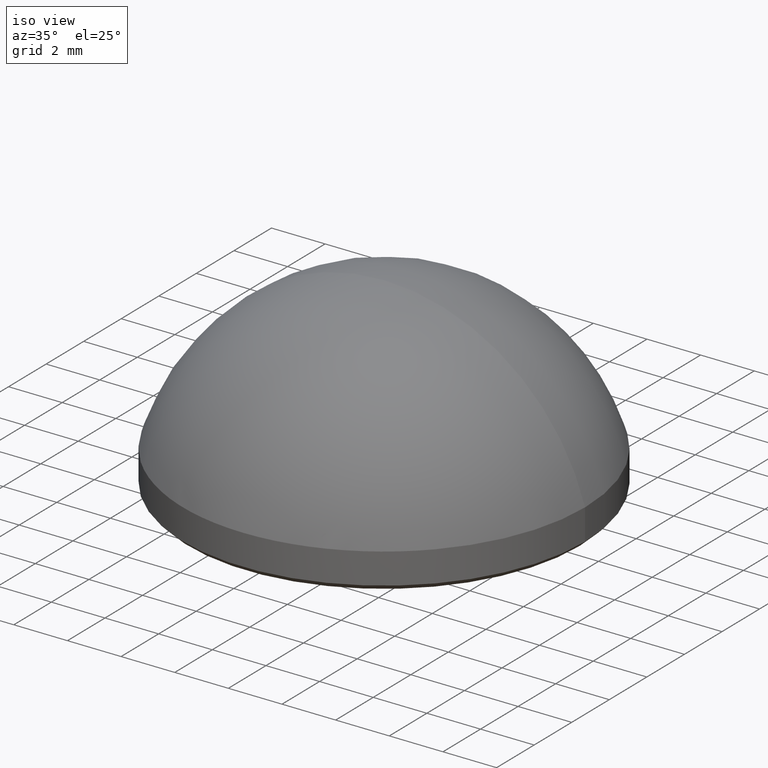
[diagram: clean part render]
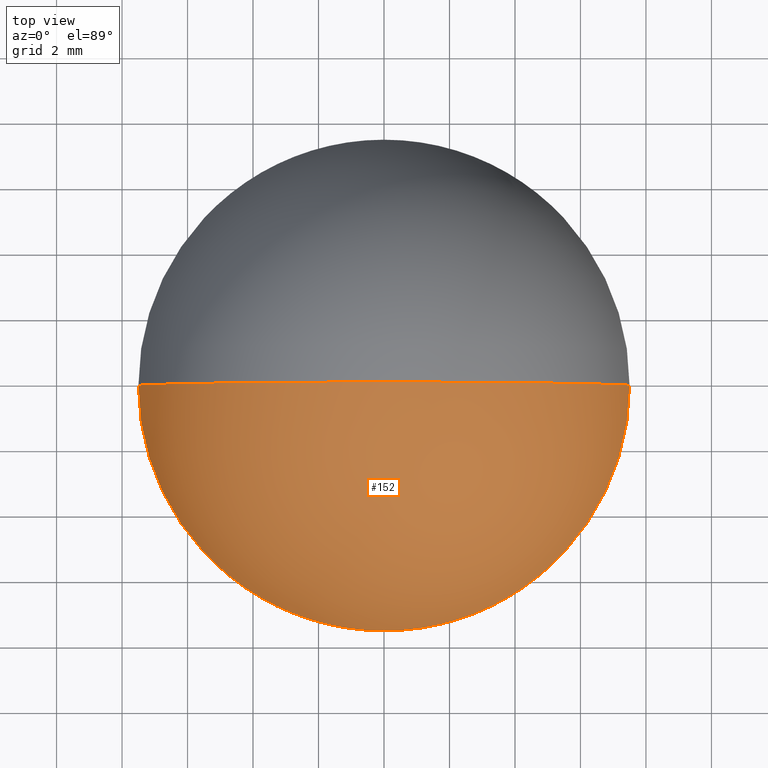
[diagram: tour spotlight — one face highlighted and labeled with its STEP entity id]
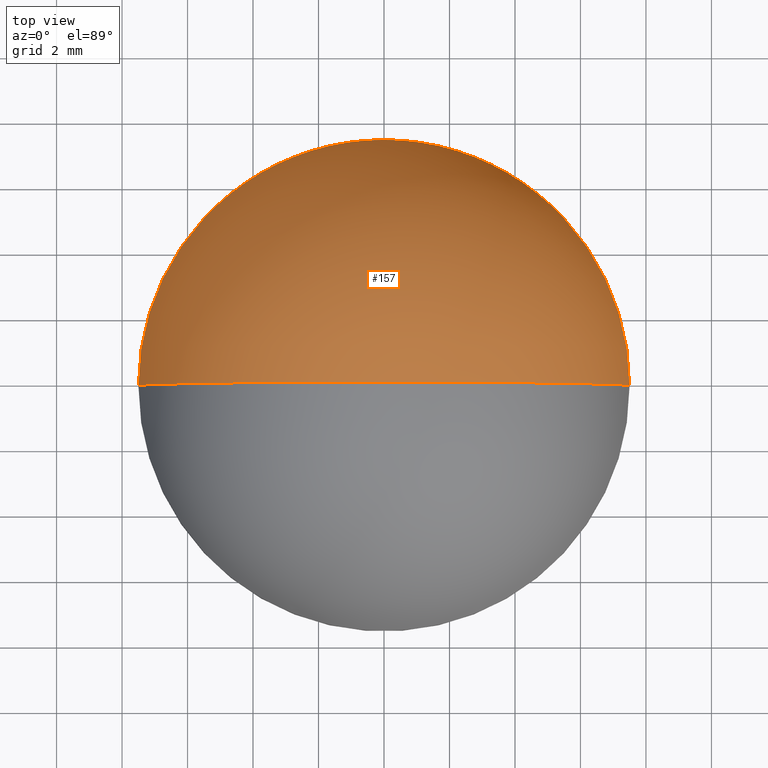
[diagram: tour spotlight — one face highlighted and labeled with its STEP entity id]
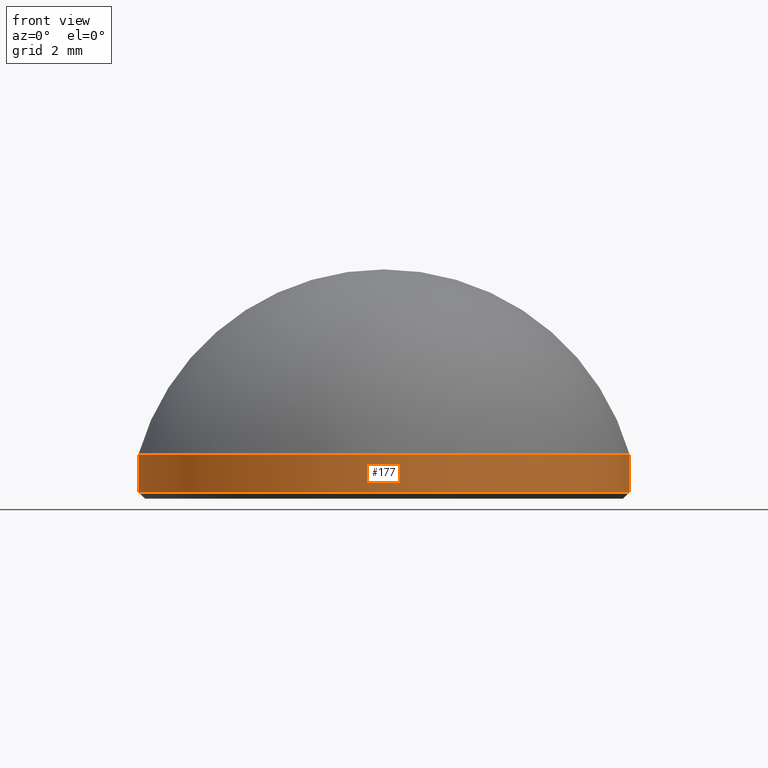
[diagram: tour spotlight — one face highlighted and labeled with its STEP entity id]
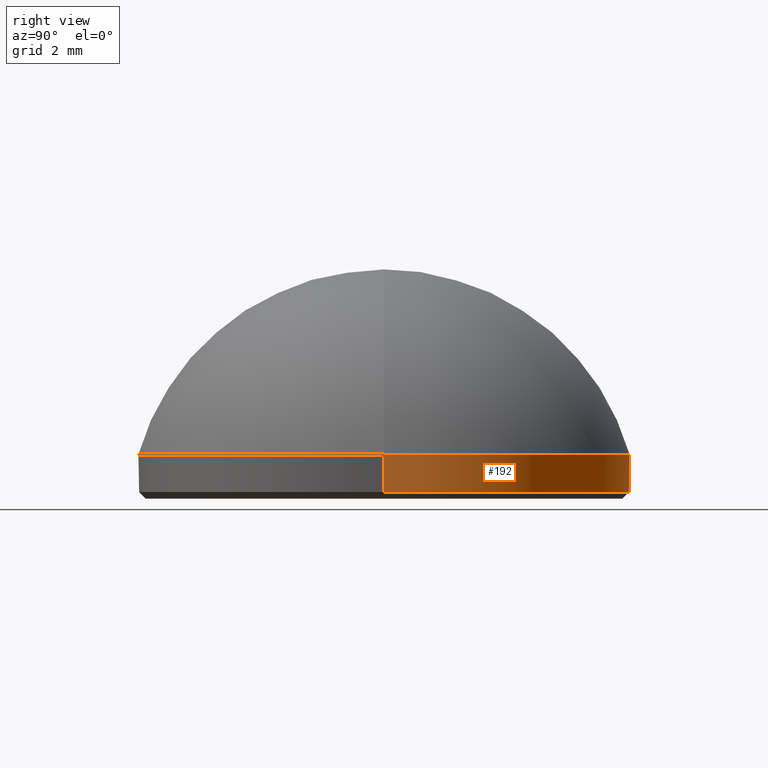
[diagram: tour spotlight — one face highlighted and labeled with its STEP entity id]
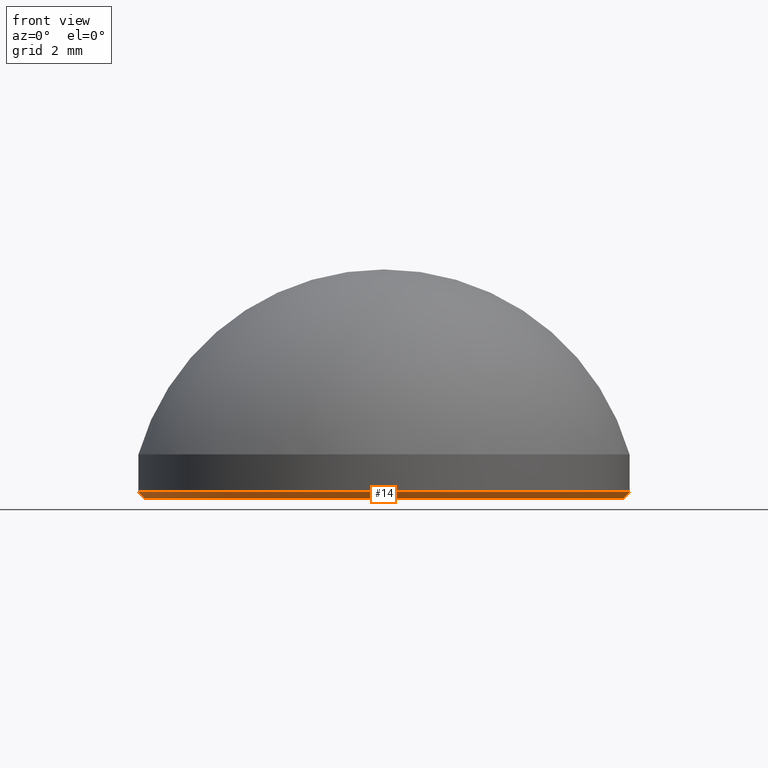
[diagram: tour spotlight — one face highlighted and labeled with its STEP entity id]
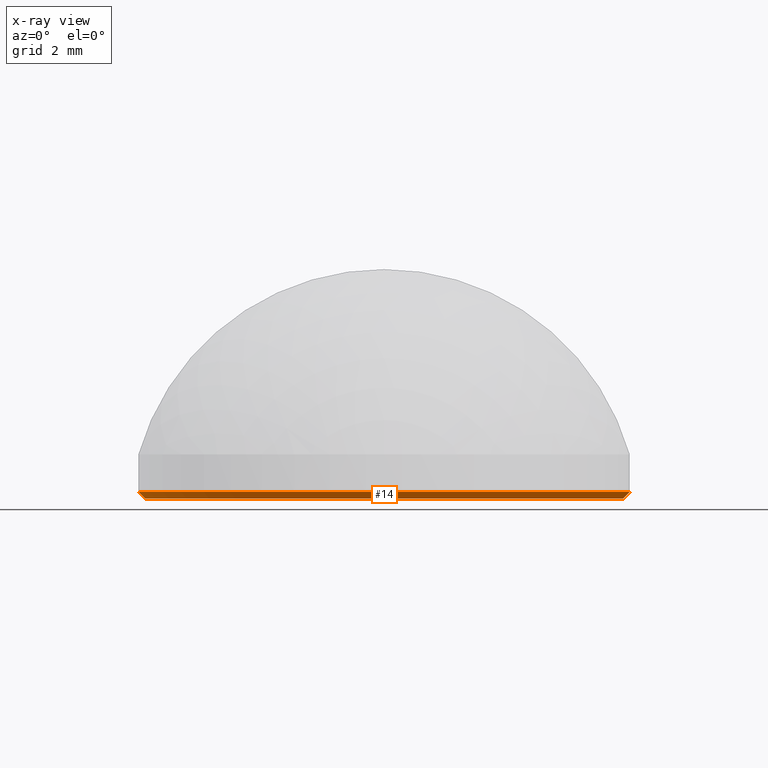
[diagram: x-ray of the same camera — body ghosted, this tour face saturated]
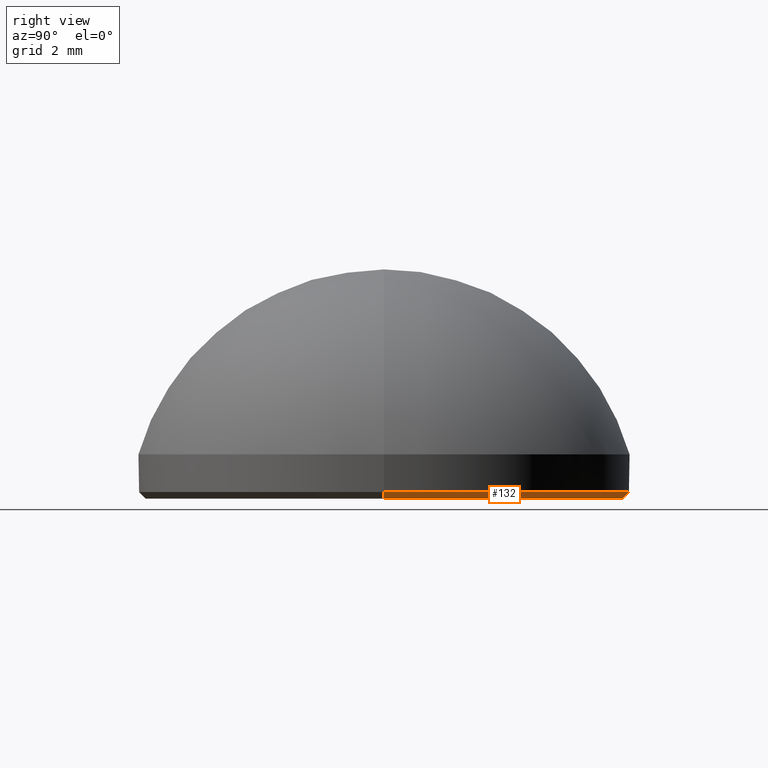
[diagram: tour spotlight — one face highlighted and labeled with its STEP entity id]
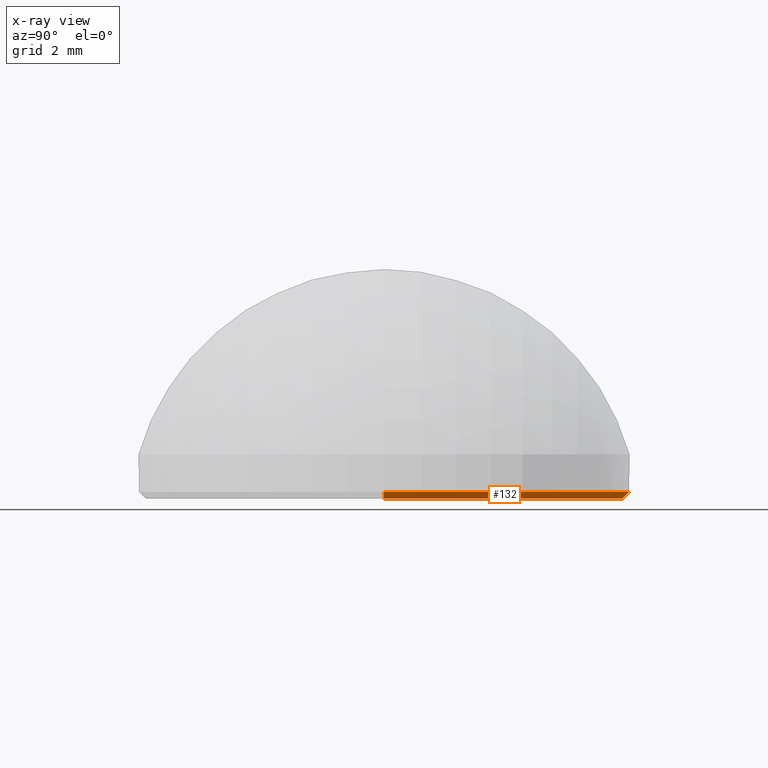
[diagram: x-ray of the same camera — body ghosted, this tour face saturated]
A machine part: a face-by-face anatomy tour. The part has 7 B-rep faces; the first image is the clean iso view, then the 6 largest visible faces are spotlighted one at a time (largest first), each with its STEP entity span.

Face 1 — top view, entity #152. In plain terms, the highlighted spherical surface has radius 7.8029 mm.
Definition (entity closure, byte-faithful):
#1 = VERTEX_POINT ( 'NONE', #115 ) ;
#9 = DIRECTION ( 'NONE',  ( 0.000000000000000000, 1.000000000000000000, 0.000000000000000000 ) ) ;
#20 = AXIS2_PLACEMENT_3D ( 'NONE', #172, #59, #23 ) ;
#23 = DIRECTION ( 'NONE',  ( -1.000000000000000000, 0.000000000000000000, 0.000000000000000000 ) ) ;
#41 = FACE_OUTER_BOUND ( 'NONE', #211, .T. ) ;
#43 = CIRCLE ( 'NONE', #68, 7.802876106194690742 ) ;
#47 = VERTEX_POINT ( 'NONE', #70 ) ;
#51 = CARTESIAN_POINT ( 'NONE',  ( -4.336808689942017736E-16, 0.000000000000000000, -0.8028761061946902977 ) ) ;
#53 = DIRECTION ( 'NONE',  ( 1.000000000000000000, -1.224646799147353207E-16, 0.000000000000000000 ) ) ;
#58 = CIRCLE ( 'NONE', #101, 7.500000000000000888 ) ;
#59 = DIRECTION ( 'NONE',  ( -0.000000000000000000, -1.000000000000000000, 0.000000000000000000 ) ) ;
#61 = CARTESIAN_POINT ( 'NONE',  ( -4.336808689942017736E-16, 0.000000000000000000, -0.8028761061946902977 ) ) ;
#65 = DIRECTION ( 'NONE',  ( -1.224646799147353207E-16, -1.000000000000000000, -0.000000000000000000 ) ) ;
#67 = DIRECTION ( 'NONE',  ( 0.000000000000000000, 0.000000000000000000, 1.000000000000000000 ) ) ;
#68 = AXIS2_PLACEMENT_3D ( 'NONE', #61, #65, #53 ) ;
#69 = ORIENTED_EDGE ( 'NONE', *, *, #82, .F. ) ;
#70 = CARTESIAN_POINT ( 'NONE',  ( 7.500000000000000888, 9.184850993605147944E-16, 1.350000000000000089 ) ) ;
#77 = EDGE_CURVE ( 'NONE', #79, #47, #58, .T. ) ;
#79 = VERTEX_POINT ( 'NONE', #201 ) ;
#80 = AXIS2_PLACEMENT_3D ( 'NONE', #51, #9, #149 ) ;
#82 = EDGE_CURVE ( 'NONE', #79, #1, #214, .T. ) ;
#96 = CARTESIAN_POINT ( 'NONE',  ( 0.000000000000000000, 0.000000000000000000, 1.350000000000000089 ) ) ;
#101 = AXIS2_PLACEMENT_3D ( 'NONE', #96, #67, #129 ) ;
#103 = SPHERICAL_SURFACE ( 'NONE', #20, 7.802876106194690742 ) ;
#115 = CARTESIAN_POINT ( 'NONE',  ( -9.114692313739364955E-16, 0.000000000000000000, 7.000000000000000000 ) ) ;
#122 = ORIENTED_EDGE ( 'NONE', *, *, #77, .T. ) ;
#129 = DIRECTION ( 'NONE',  ( 1.000000000000000000, 0.000000000000000000, 0.000000000000000000 ) ) ;
#149 = DIRECTION ( 'NONE',  ( 0.000000000000000000, 0.000000000000000000, 1.000000000000000000 ) ) ;
#152 = ADVANCED_FACE ( 'NONE', ( #41 ), #103, .T. ) ;
#172 = CARTESIAN_POINT ( 'NONE',  ( -4.336808689942017736E-16, 0.000000000000000000, -0.8028761061946902977 ) ) ;
#181 = EDGE_CURVE ( 'NONE', #47, #1, #43, .T. ) ;
#201 = CARTESIAN_POINT ( 'NONE',  ( -7.500000000000000888, 0.000000000000000000, 1.350000000000000089 ) ) ;
#211 = EDGE_LOOP ( 'NONE', ( #122, #216, #69 ) ) ;
#214 = CIRCLE ( 'NONE', #80, 7.802876106194690742 ) ;
#216 = ORIENTED_EDGE ( 'NONE', *, *, #181, .T. ) ;

Face 2 — top view, entity #157. In plain terms, the highlighted spherical surface has radius 7.8029 mm.
Definition (entity closure, byte-faithful):
#1 = VERTEX_POINT ( 'NONE', #115 ) ;
#9 = DIRECTION ( 'NONE',  ( 0.000000000000000000, 1.000000000000000000, 0.000000000000000000 ) ) ;
#12 = ORIENTED_EDGE ( 'NONE', *, *, #106, .T. ) ;
#21 = DIRECTION ( 'NONE',  ( 0.000000000000000000, 0.000000000000000000, 1.000000000000000000 ) ) ;
#25 = FACE_OUTER_BOUND ( 'NONE', #32, .T. ) ;
#29 = DIRECTION ( 'NONE',  ( -0.000000000000000000, -1.000000000000000000, 0.000000000000000000 ) ) ;
#32 = EDGE_LOOP ( 'NONE', ( #195, #12, #203 ) ) ;
#43 = CIRCLE ( 'NONE', #68, 7.802876106194690742 ) ;
#47 = VERTEX_POINT ( 'NONE', #70 ) ;
#51 = CARTESIAN_POINT ( 'NONE',  ( -4.336808689942017736E-16, 0.000000000000000000, -0.8028761061946902977 ) ) ;
#53 = DIRECTION ( 'NONE',  ( 1.000000000000000000, -1.224646799147353207E-16, 0.000000000000000000 ) ) ;
#61 = CARTESIAN_POINT ( 'NONE',  ( -4.336808689942017736E-16, 0.000000000000000000, -0.8028761061946902977 ) ) ;
#65 = DIRECTION ( 'NONE',  ( -1.224646799147353207E-16, -1.000000000000000000, -0.000000000000000000 ) ) ;
#68 = AXIS2_PLACEMENT_3D ( 'NONE', #61, #65, #53 ) ;
#70 = CARTESIAN_POINT ( 'NONE',  ( 7.500000000000000888, 9.184850993605147944E-16, 1.350000000000000089 ) ) ;
#79 = VERTEX_POINT ( 'NONE', #201 ) ;
#80 = AXIS2_PLACEMENT_3D ( 'NONE', #51, #9, #149 ) ;
#82 = EDGE_CURVE ( 'NONE', #79, #1, #214, .T. ) ;
#95 = AXIS2_PLACEMENT_3D ( 'NONE', #168, #29, #108 ) ;
#98 = SPHERICAL_SURFACE ( 'NONE', #95, 7.802876106194690742 ) ;
#106 = EDGE_CURVE ( 'NONE', #47, #79, #165, .T. ) ;
#108 = DIRECTION ( 'NONE',  ( -1.000000000000000000, 0.000000000000000000, 0.000000000000000000 ) ) ;
#115 = CARTESIAN_POINT ( 'NONE',  ( -9.114692313739364955E-16, 0.000000000000000000, 7.000000000000000000 ) ) ;
#149 = DIRECTION ( 'NONE',  ( 0.000000000000000000, 0.000000000000000000, 1.000000000000000000 ) ) ;
#153 = DIRECTION ( 'NONE',  ( 1.000000000000000000, 0.000000000000000000, 0.000000000000000000 ) ) ;
#154 = CARTESIAN_POINT ( 'NONE',  ( 0.000000000000000000, 0.000000000000000000, 1.350000000000000089 ) ) ;
#157 = ADVANCED_FACE ( 'NONE', ( #25 ), #98, .T. ) ;
#165 = CIRCLE ( 'NONE', #209, 7.500000000000000888 ) ;
#168 = CARTESIAN_POINT ( 'NONE',  ( -4.336808689942017736E-16, 0.000000000000000000, -0.8028761061946902977 ) ) ;
#181 = EDGE_CURVE ( 'NONE', #47, #1, #43, .T. ) ;
#195 = ORIENTED_EDGE ( 'NONE', *, *, #181, .F. ) ;
#201 = CARTESIAN_POINT ( 'NONE',  ( -7.500000000000000888, 0.000000000000000000, 1.350000000000000089 ) ) ;
#203 = ORIENTED_EDGE ( 'NONE', *, *, #82, .T. ) ;
#209 = AXIS2_PLACEMENT_3D ( 'NONE', #154, #21, #153 ) ;
#214 = CIRCLE ( 'NONE', #80, 7.802876106194690742 ) ;

Face 3 — front view, entity #177. In plain terms, the highlighted cylindrical surface (partial cylindrical patch) has radius 7.5 mm, axis along (-0, -0, -1).
Definition (entity closure, byte-faithful):
#3 = DIRECTION ( 'NONE',  ( -0.000000000000000000, -0.000000000000000000, -1.000000000000000000 ) ) ;
#11 = VECTOR ( 'NONE', #81, 1000.000000000000000 ) ;
#15 = VECTOR ( 'NONE', #3, 1000.000000000000000 ) ;
#26 = EDGE_CURVE ( 'NONE', #47, #126, #171, .T. ) ;
#34 = EDGE_CURVE ( 'NONE', #79, #114, #150, .T. ) ;
#37 = ORIENTED_EDGE ( 'NONE', *, *, #60, .T. ) ;
#45 = DIRECTION ( 'NONE',  ( -1.000000000000000000, 0.000000000000000000, 0.000000000000000000 ) ) ;
#47 = VERTEX_POINT ( 'NONE', #70 ) ;
#58 = CIRCLE ( 'NONE', #101, 7.500000000000000888 ) ;
#60 = EDGE_CURVE ( 'NONE', #114, #126, #180, .T. ) ;
#62 = EDGE_LOOP ( 'NONE', ( #66, #159, #200, #37 ) ) ;
#63 = CYLINDRICAL_SURFACE ( 'NONE', #160, 7.500000000000000888 ) ;
#66 = ORIENTED_EDGE ( 'NONE', *, *, #26, .F. ) ;
#67 = DIRECTION ( 'NONE',  ( 0.000000000000000000, 0.000000000000000000, 1.000000000000000000 ) ) ;
#70 = CARTESIAN_POINT ( 'NONE',  ( 7.500000000000000888, 9.184850993605147944E-16, 1.350000000000000089 ) ) ;
#77 = EDGE_CURVE ( 'NONE', #79, #47, #58, .T. ) ;
#78 = CARTESIAN_POINT ( 'NONE',  ( -7.500000000000000888, 0.000000000000000000, 1.350000000000000089 ) ) ;
#79 = VERTEX_POINT ( 'NONE', #201 ) ;
#81 = DIRECTION ( 'NONE',  ( -0.000000000000000000, -0.000000000000000000, -1.000000000000000000 ) ) ;
#84 = CARTESIAN_POINT ( 'NONE',  ( -7.500000000000000888, 0.000000000000000000, 0.2000000000000065892 ) ) ;
#86 = FACE_OUTER_BOUND ( 'NONE', #62, .T. ) ;
#87 = AXIS2_PLACEMENT_3D ( 'NONE', #136, #118, #188 ) ;
#96 = CARTESIAN_POINT ( 'NONE',  ( 0.000000000000000000, 0.000000000000000000, 1.350000000000000089 ) ) ;
#101 = AXIS2_PLACEMENT_3D ( 'NONE', #96, #67, #129 ) ;
#102 = CARTESIAN_POINT ( 'NONE',  ( 7.500000000000000888, 9.184850993605147944E-16, 1.350000000000000089 ) ) ;
#114 = VERTEX_POINT ( 'NONE', #84 ) ;
#118 = DIRECTION ( 'NONE',  ( -0.000000000000000000, -0.000000000000000000, 1.000000000000000000 ) ) ;
#125 = CARTESIAN_POINT ( 'NONE',  ( 0.000000000000000000, 0.000000000000000000, 1.350000000000000089 ) ) ;
#126 = VERTEX_POINT ( 'NONE', #208 ) ;
#129 = DIRECTION ( 'NONE',  ( 1.000000000000000000, 0.000000000000000000, 0.000000000000000000 ) ) ;
#136 = CARTESIAN_POINT ( 'NONE',  ( 0.000000000000000000, 0.000000000000000000, 0.2000000000000065892 ) ) ;
#150 = LINE ( 'NONE', #78, #15 ) ;
#159 = ORIENTED_EDGE ( 'NONE', *, *, #77, .F. ) ;
#160 = AXIS2_PLACEMENT_3D ( 'NONE', #125, #213, #45 ) ;
#171 = LINE ( 'NONE', #102, #11 ) ;
#177 = ADVANCED_FACE ( 'NONE', ( #86 ), #63, .T. ) ;
#180 = CIRCLE ( 'NONE', #87, 7.500000000000000888 ) ;
#188 = DIRECTION ( 'NONE',  ( 1.000000000000000000, 0.000000000000000000, 0.000000000000000000 ) ) ;
#200 = ORIENTED_EDGE ( 'NONE', *, *, #34, .T. ) ;
#201 = CARTESIAN_POINT ( 'NONE',  ( -7.500000000000000888, 0.000000000000000000, 1.350000000000000089 ) ) ;
#208 = CARTESIAN_POINT ( 'NONE',  ( 7.500000000000000888, 9.184850993605147944E-16, 0.2000000000000065892 ) ) ;
#213 = DIRECTION ( 'NONE',  ( -0.000000000000000000, -0.000000000000000000, -1.000000000000000000 ) ) ;

Face 4 — right view, entity #192. In plain terms, the highlighted cylindrical surface (partial cylindrical patch) has radius 7.5 mm, axis along (-0, -0, -1).
Definition (entity closure, byte-faithful):
#3 = DIRECTION ( 'NONE',  ( -0.000000000000000000, -0.000000000000000000, -1.000000000000000000 ) ) ;
#11 = VECTOR ( 'NONE', #81, 1000.000000000000000 ) ;
#15 = VECTOR ( 'NONE', #3, 1000.000000000000000 ) ;
#17 = ORIENTED_EDGE ( 'NONE', *, *, #106, .F. ) ;
#19 = CARTESIAN_POINT ( 'NONE',  ( 0.000000000000000000, 0.000000000000000000, 0.2000000000000065892 ) ) ;
#21 = DIRECTION ( 'NONE',  ( 0.000000000000000000, 0.000000000000000000, 1.000000000000000000 ) ) ;
#24 = EDGE_CURVE ( 'NONE', #126, #114, #139, .T. ) ;
#26 = EDGE_CURVE ( 'NONE', #47, #126, #171, .T. ) ;
#34 = EDGE_CURVE ( 'NONE', #79, #114, #150, .T. ) ;
#47 = VERTEX_POINT ( 'NONE', #70 ) ;
#56 = DIRECTION ( 'NONE',  ( -0.000000000000000000, -0.000000000000000000, 1.000000000000000000 ) ) ;
#70 = CARTESIAN_POINT ( 'NONE',  ( 7.500000000000000888, 9.184850993605147944E-16, 1.350000000000000089 ) ) ;
#78 = CARTESIAN_POINT ( 'NONE',  ( -7.500000000000000888, 0.000000000000000000, 1.350000000000000089 ) ) ;
#79 = VERTEX_POINT ( 'NONE', #201 ) ;
#81 = DIRECTION ( 'NONE',  ( -0.000000000000000000, -0.000000000000000000, -1.000000000000000000 ) ) ;
#84 = CARTESIAN_POINT ( 'NONE',  ( -7.500000000000000888, 0.000000000000000000, 0.2000000000000065892 ) ) ;
#89 = ORIENTED_EDGE ( 'NONE', *, *, #26, .T. ) ;
#102 = CARTESIAN_POINT ( 'NONE',  ( 7.500000000000000888, 9.184850993605147944E-16, 1.350000000000000089 ) ) ;
#106 = EDGE_CURVE ( 'NONE', #47, #79, #165, .T. ) ;
#107 = ORIENTED_EDGE ( 'NONE', *, *, #24, .T. ) ;
#109 = FACE_OUTER_BOUND ( 'NONE', #179, .T. ) ;
#112 = CYLINDRICAL_SURFACE ( 'NONE', #193, 7.500000000000000888 ) ;
#114 = VERTEX_POINT ( 'NONE', #84 ) ;
#123 = DIRECTION ( 'NONE',  ( -0.000000000000000000, -0.000000000000000000, -1.000000000000000000 ) ) ;
#126 = VERTEX_POINT ( 'NONE', #208 ) ;
#139 = CIRCLE ( 'NONE', #148, 7.500000000000000888 ) ;
#148 = AXIS2_PLACEMENT_3D ( 'NONE', #19, #56, #169 ) ;
#150 = LINE ( 'NONE', #78, #15 ) ;
#153 = DIRECTION ( 'NONE',  ( 1.000000000000000000, 0.000000000000000000, 0.000000000000000000 ) ) ;
#154 = CARTESIAN_POINT ( 'NONE',  ( 0.000000000000000000, 0.000000000000000000, 1.350000000000000089 ) ) ;
#156 = CARTESIAN_POINT ( 'NONE',  ( 0.000000000000000000, 0.000000000000000000, 1.350000000000000089 ) ) ;
#163 = DIRECTION ( 'NONE',  ( -1.000000000000000000, 0.000000000000000000, 0.000000000000000000 ) ) ;
#165 = CIRCLE ( 'NONE', #209, 7.500000000000000888 ) ;
#169 = DIRECTION ( 'NONE',  ( 1.000000000000000000, 0.000000000000000000, 0.000000000000000000 ) ) ;
#171 = LINE ( 'NONE', #102, #11 ) ;
#179 = EDGE_LOOP ( 'NONE', ( #17, #89, #107, #185 ) ) ;
#185 = ORIENTED_EDGE ( 'NONE', *, *, #34, .F. ) ;
#192 = ADVANCED_FACE ( 'NONE', ( #109 ), #112, .T. ) ;
#193 = AXIS2_PLACEMENT_3D ( 'NONE', #156, #123, #163 ) ;
#201 = CARTESIAN_POINT ( 'NONE',  ( -7.500000000000000888, 0.000000000000000000, 1.350000000000000089 ) ) ;
#208 = CARTESIAN_POINT ( 'NONE',  ( 7.500000000000000888, 9.184850993605147944E-16, 0.2000000000000065892 ) ) ;
#209 = AXIS2_PLACEMENT_3D ( 'NONE', #154, #21, #153 ) ;

Face 5 — front view, entity #14. An x-ray twin of the same camera follows (body ghosted, this face saturated) — the face is partly hidden behind the body. In plain terms, the highlighted conical surface has half-angle 45 deg.
Definition (entity closure, byte-faithful):
#8 = EDGE_CURVE ( 'NONE', #146, #126, #186, .T. ) ;
#14 = ADVANCED_FACE ( 'NONE', ( #134 ), #31, .T. ) ;
#31 = CONICAL_SURFACE ( 'NONE', #189, 7.500000000000000888, 0.7853981633974461696 ) ;
#35 = ORIENTED_EDGE ( 'NONE', *, *, #94, .F. ) ;
#38 = DIRECTION ( 'NONE',  ( -0.000000000000000000, -0.000000000000000000, 1.000000000000000000 ) ) ;
#42 = DIRECTION ( 'NONE',  ( -0.000000000000000000, -0.000000000000000000, -1.000000000000000000 ) ) ;
#55 = CARTESIAN_POINT ( 'NONE',  ( 0.000000000000000000, 0.000000000000000000, 0.000000000000000000 ) ) ;
#60 = EDGE_CURVE ( 'NONE', #114, #126, #180, .T. ) ;
#64 = ORIENTED_EDGE ( 'NONE', *, *, #60, .F. ) ;
#84 = CARTESIAN_POINT ( 'NONE',  ( -7.500000000000000888, 0.000000000000000000, 0.2000000000000065892 ) ) ;
#87 = AXIS2_PLACEMENT_3D ( 'NONE', #136, #118, #188 ) ;
#94 = EDGE_CURVE ( 'NONE', #146, #97, #138, .T. ) ;
#97 = VERTEX_POINT ( 'NONE', #120 ) ;
#99 = DIRECTION ( 'NONE',  ( 1.000000000000000000, 0.000000000000000000, 0.000000000000000000 ) ) ;
#100 = LINE ( 'NONE', #104, #119 ) ;
#104 = CARTESIAN_POINT ( 'NONE',  ( -7.500000000000000888, 9.184850993605149917E-16, 0.2000000000000065892 ) ) ;
#114 = VERTEX_POINT ( 'NONE', #84 ) ;
#118 = DIRECTION ( 'NONE',  ( -0.000000000000000000, -0.000000000000000000, 1.000000000000000000 ) ) ;
#119 = VECTOR ( 'NONE', #151, 1000.000000000000227 ) ;
#120 = CARTESIAN_POINT ( 'NONE',  ( -7.299999999999994493, 9.062386313690410430E-16, 0.000000000000000000 ) ) ;
#121 = VECTOR ( 'NONE', #147, 1000.000000000000227 ) ;
#126 = VERTEX_POINT ( 'NONE', #208 ) ;
#128 = CARTESIAN_POINT ( 'NONE',  ( 0.000000000000000000, 0.000000000000000000, 0.2000000000000065892 ) ) ;
#134 = FACE_OUTER_BOUND ( 'NONE', #167, .T. ) ;
#136 = CARTESIAN_POINT ( 'NONE',  ( 0.000000000000000000, 0.000000000000000000, 0.2000000000000065892 ) ) ;
#138 = CIRCLE ( 'NONE', #170, 7.299999999999994493 ) ;
#140 = EDGE_CURVE ( 'NONE', #97, #114, #100, .T. ) ;
#141 = ORIENTED_EDGE ( 'NONE', *, *, #140, .F. ) ;
#146 = VERTEX_POINT ( 'NONE', #187 ) ;
#147 = DIRECTION ( 'NONE',  ( 0.7071067811865460184, 0.000000000000000000, 0.7071067811865490160 ) ) ;
#151 = DIRECTION ( 'NONE',  ( -0.7071067811865460184, 8.659560562354913137E-17, 0.7071067811865490160 ) ) ;
#166 = ORIENTED_EDGE ( 'NONE', *, *, #8, .T. ) ;
#167 = EDGE_LOOP ( 'NONE', ( #141, #35, #166, #64 ) ) ;
#170 = AXIS2_PLACEMENT_3D ( 'NONE', #55, #42, #191 ) ;
#180 = CIRCLE ( 'NONE', #87, 7.500000000000000888 ) ;
#186 = LINE ( 'NONE', #205, #121 ) ;
#187 = CARTESIAN_POINT ( 'NONE',  ( 7.299999999999994493, 0.000000000000000000, 0.000000000000000000 ) ) ;
#188 = DIRECTION ( 'NONE',  ( 1.000000000000000000, 0.000000000000000000, 0.000000000000000000 ) ) ;
#189 = AXIS2_PLACEMENT_3D ( 'NONE', #128, #38, #99 ) ;
#191 = DIRECTION ( 'NONE',  ( 1.000000000000000000, 0.000000000000000000, 0.000000000000000000 ) ) ;
#205 = CARTESIAN_POINT ( 'NONE',  ( 7.500000000000000888, 0.000000000000000000, 0.2000000000000065892 ) ) ;
#208 = CARTESIAN_POINT ( 'NONE',  ( 7.500000000000000888, 9.184850993605147944E-16, 0.2000000000000065892 ) ) ;

Face 6 — right view, entity #132. An x-ray twin of the same camera follows (body ghosted, this face saturated) — the face is partly hidden behind the body. In plain terms, the highlighted conical surface has half-angle 45 deg.
Definition (entity closure, byte-faithful):
#6 = DIRECTION ( 'NONE',  ( -0.000000000000000000, -0.000000000000000000, 1.000000000000000000 ) ) ;
#8 = EDGE_CURVE ( 'NONE', #146, #126, #186, .T. ) ;
#19 = CARTESIAN_POINT ( 'NONE',  ( 0.000000000000000000, 0.000000000000000000, 0.2000000000000065892 ) ) ;
#24 = EDGE_CURVE ( 'NONE', #126, #114, #139, .T. ) ;
#54 = EDGE_LOOP ( 'NONE', ( #178, #110, #91, #196 ) ) ;
#56 = DIRECTION ( 'NONE',  ( -0.000000000000000000, -0.000000000000000000, 1.000000000000000000 ) ) ;
#71 = DIRECTION ( 'NONE',  ( 1.000000000000000000, 0.000000000000000000, 0.000000000000000000 ) ) ;
#73 = CIRCLE ( 'NONE', #155, 7.299999999999994493 ) ;
#74 = DIRECTION ( 'NONE',  ( -0.000000000000000000, -0.000000000000000000, -1.000000000000000000 ) ) ;
#84 = CARTESIAN_POINT ( 'NONE',  ( -7.500000000000000888, 0.000000000000000000, 0.2000000000000065892 ) ) ;
#91 = ORIENTED_EDGE ( 'NONE', *, *, #24, .F. ) ;
#97 = VERTEX_POINT ( 'NONE', #120 ) ;
#100 = LINE ( 'NONE', #104, #119 ) ;
#104 = CARTESIAN_POINT ( 'NONE',  ( -7.500000000000000888, 9.184850993605149917E-16, 0.2000000000000065892 ) ) ;
#110 = ORIENTED_EDGE ( 'NONE', *, *, #140, .T. ) ;
#114 = VERTEX_POINT ( 'NONE', #84 ) ;
#117 = FACE_OUTER_BOUND ( 'NONE', #54, .T. ) ;
#119 = VECTOR ( 'NONE', #151, 1000.000000000000227 ) ;
#120 = CARTESIAN_POINT ( 'NONE',  ( -7.299999999999994493, 9.062386313690410430E-16, 0.000000000000000000 ) ) ;
#121 = VECTOR ( 'NONE', #147, 1000.000000000000227 ) ;
#126 = VERTEX_POINT ( 'NONE', #208 ) ;
#132 = ADVANCED_FACE ( 'NONE', ( #117 ), #198, .T. ) ;
#137 = CARTESIAN_POINT ( 'NONE',  ( 0.000000000000000000, 0.000000000000000000, 0.2000000000000065892 ) ) ;
#139 = CIRCLE ( 'NONE', #148, 7.500000000000000888 ) ;
#140 = EDGE_CURVE ( 'NONE', #97, #114, #100, .T. ) ;
#146 = VERTEX_POINT ( 'NONE', #187 ) ;
#147 = DIRECTION ( 'NONE',  ( 0.7071067811865460184, 0.000000000000000000, 0.7071067811865490160 ) ) ;
#148 = AXIS2_PLACEMENT_3D ( 'NONE', #19, #56, #169 ) ;
#151 = DIRECTION ( 'NONE',  ( -0.7071067811865460184, 8.659560562354913137E-17, 0.7071067811865490160 ) ) ;
#155 = AXIS2_PLACEMENT_3D ( 'NONE', #194, #74, #197 ) ;
#169 = DIRECTION ( 'NONE',  ( 1.000000000000000000, 0.000000000000000000, 0.000000000000000000 ) ) ;
#176 = AXIS2_PLACEMENT_3D ( 'NONE', #137, #6, #71 ) ;
#178 = ORIENTED_EDGE ( 'NONE', *, *, #204, .F. ) ;
#186 = LINE ( 'NONE', #205, #121 ) ;
#187 = CARTESIAN_POINT ( 'NONE',  ( 7.299999999999994493, 0.000000000000000000, 0.000000000000000000 ) ) ;
#194 = CARTESIAN_POINT ( 'NONE',  ( 0.000000000000000000, 0.000000000000000000, 0.000000000000000000 ) ) ;
#196 = ORIENTED_EDGE ( 'NONE', *, *, #8, .F. ) ;
#197 = DIRECTION ( 'NONE',  ( 1.000000000000000000, 0.000000000000000000, 0.000000000000000000 ) ) ;
#198 = CONICAL_SURFACE ( 'NONE', #176, 7.500000000000000888, 0.7853981633974461696 ) ;
#204 = EDGE_CURVE ( 'NONE', #97, #146, #73, .T. ) ;
#205 = CARTESIAN_POINT ( 'NONE',  ( 7.500000000000000888, 0.000000000000000000, 0.2000000000000065892 ) ) ;
#208 = CARTESIAN_POINT ( 'NONE',  ( 7.500000000000000888, 9.184850993605147944E-16, 0.2000000000000065892 ) ) ;